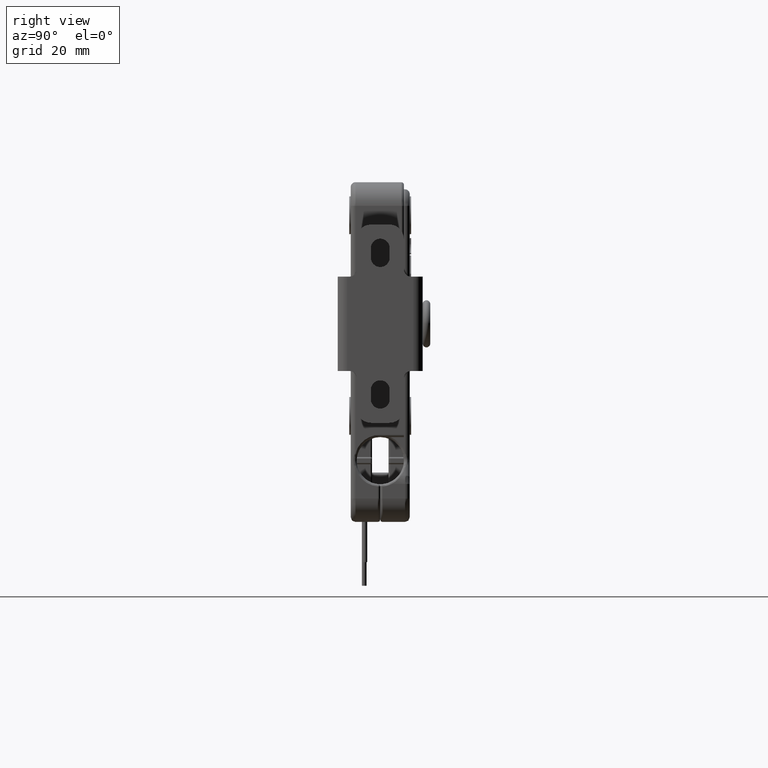
[diagram: clean part render]
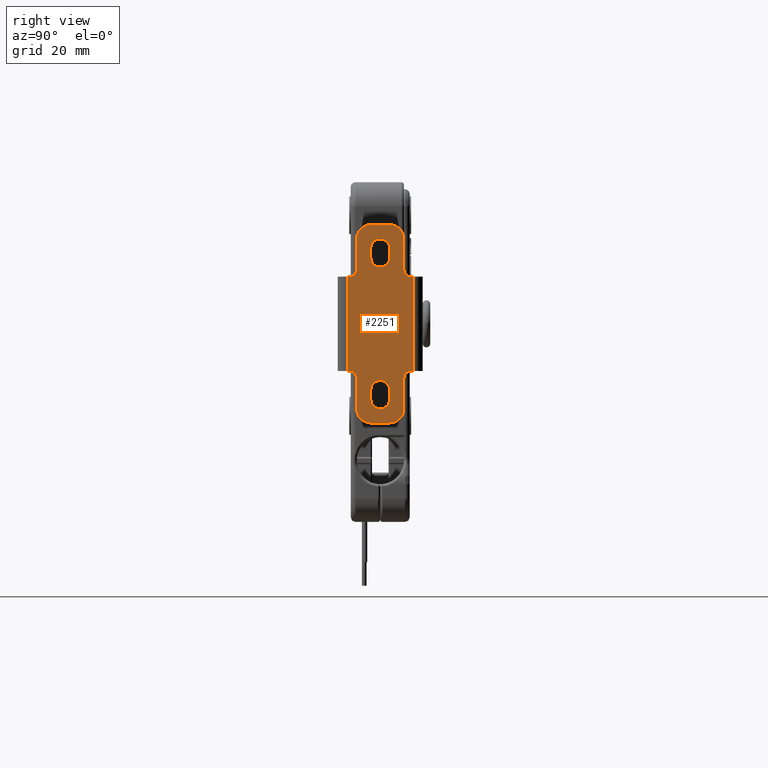
[diagram: same view with one face highlighted and labeled with its STEP entity id]
A machine part, right view. The second image highlights one B-rep face of the part: STEP entity #2251.
In plain terms, the highlighted planar face has unit normal (1, 0, 0).
Its self-contained STEP definition (entity closure, byte-faithful):
#2251=ADVANCED_FACE('',(#23766,#23767,#23768),#23765,.T.);
#23765=PLANE('',#41982);
#23766=FACE_OUTER_BOUND('',#41983,.T.);
#23767=FACE_BOUND('',#41984,.T.);
#23768=FACE_BOUND('',#41985,.T.);
#41979=CARTESIAN_POINT('',(0.00000000000E+00,-8.40000000000E+00,2.52000000002E+01));
#41980=DIRECTION('',(1.00000000000E+00,0.00000000000E+00,0.00000000000E+00));
#41981=DIRECTION('',(0.00000000000E+00,0.00000000000E+00,-1.00000000000E+00));
#41982=AXIS2_PLACEMENT_3D('',#41979,#41980,#41981);
#41983=EDGE_LOOP('',(#53648,#53649,#53650,#53651,#53652,#53653,#53654,#53655,#53656,#53657,#53658,#53659,#53660,#53661,#53662,#53663,#53664,#53665,#53666,#53667));
#41984=EDGE_LOOP('',(#53668,#53669,#53670,#53671));
#41985=EDGE_LOOP('',(#53672,#53673,#53674,#53675));
#53648=ORIENTED_EDGE('',*,*,#59489,.T.);
#53649=ORIENTED_EDGE('',*,*,#59542,.T.);
#53650=ORIENTED_EDGE('',*,*,#59480,.T.);
#53651=ORIENTED_EDGE('',*,*,#59478,.T.);
#53652=ORIENTED_EDGE('',*,*,#59541,.T.);
#53653=ORIENTED_EDGE('',*,*,#59538,.F.);
#53654=ORIENTED_EDGE('',*,*,#59535,.T.);
#53655=ORIENTED_EDGE('',*,*,#59532,.F.);
#53656=ORIENTED_EDGE('',*,*,#59529,.T.);
#53657=ORIENTED_EDGE('',*,*,#59526,.T.);
#53658=ORIENTED_EDGE('',*,*,#59521,.T.);
#53659=ORIENTED_EDGE('',*,*,#59543,.T.);
#53660=ORIENTED_EDGE('',*,*,#59516,.T.);
#53661=ORIENTED_EDGE('',*,*,#59514,.T.);
#53662=ORIENTED_EDGE('',*,*,#59511,.T.);
#53663=ORIENTED_EDGE('',*,*,#59508,.F.);
#53664=ORIENTED_EDGE('',*,*,#59505,.T.);
#53665=ORIENTED_EDGE('',*,*,#59502,.F.);
#53666=ORIENTED_EDGE('',*,*,#59499,.T.);
#53667=ORIENTED_EDGE('',*,*,#59496,.T.);
#53668=ORIENTED_EDGE('',*,*,#59469,.T.);
#53669=ORIENTED_EDGE('',*,*,#59466,.T.);
#53670=ORIENTED_EDGE('',*,*,#59475,.T.);
#53671=ORIENTED_EDGE('',*,*,#59472,.T.);
#53672=ORIENTED_EDGE('',*,*,#59457,.T.);
#53673=ORIENTED_EDGE('',*,*,#59454,.T.);
#53674=ORIENTED_EDGE('',*,*,#59463,.T.);
#53675=ORIENTED_EDGE('',*,*,#59460,.T.);
#59454=EDGE_CURVE('',#97008,#97001,#97009,.T.);
#59457=EDGE_CURVE('',#97028,#97008,#97029,.T.);
#59460=EDGE_CURVE('',#97048,#97028,#97049,.T.);
#59463=EDGE_CURVE('',#97001,#97048,#97067,.T.);
#59466=EDGE_CURVE('',#97088,#97081,#97089,.T.);
#59469=EDGE_CURVE('',#97108,#97088,#97109,.T.);
#59472=EDGE_CURVE('',#97128,#97108,#97129,.T.);
#59475=EDGE_CURVE('',#97081,#97128,#97147,.T.);
#59478=EDGE_CURVE('',#97168,#97161,#97169,.T.);
#59480=EDGE_CURVE('',#97181,#97168,#97182,.T.);
#59489=EDGE_CURVE('',#97244,#97237,#97245,.T.);
#59496=EDGE_CURVE('',#97292,#97244,#97293,.T.);
#59499=EDGE_CURVE('',#97312,#97292,#97313,.T.);
#59502=EDGE_CURVE('',#97312,#97332,#97333,.T.);
#59505=EDGE_CURVE('',#97352,#97332,#97353,.T.);
#59508=EDGE_CURVE('',#97352,#97372,#97373,.T.);
#59511=EDGE_CURVE('',#97392,#97372,#97393,.T.);
#59514=EDGE_CURVE('',#97412,#97392,#97413,.T.);
#59516=EDGE_CURVE('',#97425,#97412,#97426,.T.);
#59521=EDGE_CURVE('',#97458,#97451,#97459,.T.);
#59526=EDGE_CURVE('',#97492,#97458,#97493,.T.);
#59529=EDGE_CURVE('',#97512,#97492,#97513,.T.);
#59532=EDGE_CURVE('',#97512,#97532,#97533,.T.);
#59535=EDGE_CURVE('',#97552,#97532,#97553,.T.);
#59538=EDGE_CURVE('',#97552,#97572,#97573,.T.);
#59541=EDGE_CURVE('',#97161,#97572,#97591,.T.);
#59542=EDGE_CURVE('',#97237,#97181,#97597,.T.);
#59543=EDGE_CURVE('',#97451,#97425,#97603,.T.);
#97001=VERTEX_POINT('',#121686);
#97008=VERTEX_POINT('',#121690);
#97009=CIRCLE('',#121694,2.00000000000E+00);
#97028=VERTEX_POINT('',#121702);
#97029=LINE('',#121703,#121704);
#97048=VERTEX_POINT('',#121714);
#97049=CIRCLE('',#121718,2.00000000000E+00);
#97067=LINE('',#121725,#121726);
#97081=VERTEX_POINT('',#121733);
#97088=VERTEX_POINT('',#121737);
#97089=LINE('',#121738,#121739);
#97108=VERTEX_POINT('',#121749);
#97109=CIRCLE('',#121753,2.00000000000E+00);
#97128=VERTEX_POINT('',#121761);
#97129=LINE('',#121762,#121763);
#97147=CIRCLE('',#121775,2.00000000000E+00);
#97161=VERTEX_POINT('',#121782);
#97168=VERTEX_POINT('',#121786);
#97169=CIRCLE('',#121790,1.50000000000E+00);
#97181=VERTEX_POINT('',#121794);
#97182=LINE('',#121795,#121796);
#97237=VERTEX_POINT('',#121828);
#97244=VERTEX_POINT('',#121833);
#97245=LINE('',#121834,#121835);
#97292=VERTEX_POINT('',#121862);
#97293=CIRCLE('',#121866,1.50000000000E+00);
#97312=VERTEX_POINT('',#121874);
#97313=LINE('',#121875,#121876);
#97332=VERTEX_POINT('',#121886);
#97333=CIRCLE('',#121890,3.00000000000E+00);
#97352=VERTEX_POINT('',#121898);
#97353=LINE('',#121899,#121900);
#97372=VERTEX_POINT('',#121910);
#97373=CIRCLE('',#121914,3.00000000000E+00);
#97392=VERTEX_POINT('',#121922);
#97393=LINE('',#121923,#121924);
#97412=VERTEX_POINT('',#121934);
#97413=CIRCLE('',#121938,1.50000000000E+00);
#97425=VERTEX_POINT('',#121942);
#97426=LINE('',#121943,#121944);
#97451=VERTEX_POINT('',#121958);
#97458=VERTEX_POINT('',#121963);
#97459=LINE('',#121964,#121965);
#97492=VERTEX_POINT('',#121984);
#97493=CIRCLE('',#121988,1.50000000000E+00);
#97512=VERTEX_POINT('',#121996);
#97513=LINE('',#121997,#121998);
#97532=VERTEX_POINT('',#122008);
#97533=CIRCLE('',#122012,3.00000000000E+00);
#97552=VERTEX_POINT('',#122020);
#97553=LINE('',#122021,#122022);
#97572=VERTEX_POINT('',#122032);
#97573=CIRCLE('',#122036,3.00000000000E+00);
#97591=LINE('',#122043,#122044);
#97597=LINE('',#122046,#122047);
#97603=LINE('',#122049,#122050);
#121686=CARTESIAN_POINT('',(0.00000000000E+00,2.00000000000E+00,1.60000000001E+01));
#121690=CARTESIAN_POINT('',(0.00000000000E+00,-2.00000000000E+00,1.60000000001E+01));
#121691=CARTESIAN_POINT('',(0.00000000000E+00,9.94759830064E-14,1.60000000001E+01));
#121692=DIRECTION('',(-1.00000000000E+00,0.00000000000E+00,-0.00000000000E+00));
#121693=DIRECTION('',(0.00000000000E+00,1.00000000000E+00,-1.83690953073E-16));
#121694=AXIS2_PLACEMENT_3D('',#121691,#121692,#121693);
#121702=CARTESIAN_POINT('',(0.00000000000E+00,-2.00000000000E+00,1.40000000001E+01));
#121703=CARTESIAN_POINT('',(0.00000000000E+00,-2.00000000000E+00,1.40000000001E+01));
#121704=VECTOR('',#121705,2.00000000000E+00);
#121705=DIRECTION('',(0.00000000000E+00,0.00000000000E+00,1.00000000000E+00));
#121714=CARTESIAN_POINT('',(0.00000000000E+00,2.00000000000E+00,1.40000000001E+01));
#121715=CARTESIAN_POINT('',(0.00000000000E+00,9.94759830064E-14,1.40000000001E+01));
#121716=DIRECTION('',(-1.00000000000E+00,-0.00000000000E+00,-0.00000000000E+00));
#121717=DIRECTION('',(-0.00000000000E+00,-0.00000000000E+00,1.00000000000E+00));
#121718=AXIS2_PLACEMENT_3D('',#121715,#121716,#121717);
#121725=CARTESIAN_POINT('',(0.00000000000E+00,2.00000000000E+00,1.60000000001E+01));
#121726=VECTOR('',#121727,2.00000000000E+00);
#121727=DIRECTION('',(0.00000000000E+00,0.00000000000E+00,-1.00000000000E+00));
#121733=CARTESIAN_POINT('',(0.00000000000E+00,-2.00000000000E+00,-1.40000000001E+01));
#121737=CARTESIAN_POINT('',(0.00000000000E+00,-2.00000000000E+00,-1.60000000001E+01));
#121738=CARTESIAN_POINT('',(0.00000000000E+00,-2.00000000000E+00,-1.60000000001E+01));
#121739=VECTOR('',#121740,2.00000000000E+00);
#121740=DIRECTION('',(0.00000000000E+00,0.00000000000E+00,1.00000000000E+00));
#121749=CARTESIAN_POINT('',(0.00000000000E+00,2.00000000000E+00,-1.60000000001E+01));
#121750=CARTESIAN_POINT('',(0.00000000000E+00,9.94759830064E-14,-1.60000000001E+01));
#121751=DIRECTION('',(-1.00000000000E+00,-0.00000000000E+00,-0.00000000000E+00));
#121752=DIRECTION('',(-0.00000000000E+00,-0.00000000000E+00,1.00000000000E+00));
#121753=AXIS2_PLACEMENT_3D('',#121750,#121751,#121752);
#121761=CARTESIAN_POINT('',(0.00000000000E+00,2.00000000000E+00,-1.40000000001E+01));
#121762=CARTESIAN_POINT('',(0.00000000000E+00,2.00000000000E+00,-1.40000000001E+01));
#121763=VECTOR('',#121764,2.00000000000E+00);
#121764=DIRECTION('',(0.00000000000E+00,0.00000000000E+00,-1.00000000000E+00));
#121772=CARTESIAN_POINT('',(0.00000000000E+00,9.94759830064E-14,-1.40000000001E+01));
#121773=DIRECTION('',(-1.00000000000E+00,0.00000000000E+00,-0.00000000000E+00));
#121774=DIRECTION('',(0.00000000000E+00,1.00000000000E+00,-1.83690953073E-16));
#121775=AXIS2_PLACEMENT_3D('',#121772,#121773,#121774);
#121782=CARTESIAN_POINT('',(0.00000000000E+00,5.00000000000E+00,1.15000000000E+01));
#121786=CARTESIAN_POINT('',(0.00000000000E+00,6.50000000000E+00,9.99999999999E+00));
#121787=CARTESIAN_POINT('',(0.00000000000E+00,6.50000000000E+00,1.15000000000E+01));
#121788=DIRECTION('',(-1.00000000000E+00,-0.00000000000E+00,-0.00000000000E+00));
#121789=DIRECTION('',(-0.00000000000E+00,-0.00000000000E+00,1.00000000000E+00));
#121790=AXIS2_PLACEMENT_3D('',#121787,#121788,#121789);
#121794=CARTESIAN_POINT('',(0.00000000000E+00,7.00000000000E+00,9.99999999999E+00));
#121795=CARTESIAN_POINT('',(0.00000000000E+00,7.00000000000E+00,9.99999999999E+00));
#121796=VECTOR('',#121797,5.00000000001E-01);
#121797=DIRECTION('',(0.00000000000E+00,-1.00000000000E+00,9.55679979595E-13));
#121828=CARTESIAN_POINT('',(0.00000000000E+00,7.00000000000E+00,-1.00000000000E+01));
#121833=CARTESIAN_POINT('',(0.00000000000E+00,6.50000000000E+00,-1.00000000000E+01));
#121834=CARTESIAN_POINT('',(0.00000000000E+00,6.50000000000E+00,-1.00000000000E+01));
#121835=VECTOR('',#121836,4.99999999999E-01);
#121836=DIRECTION('',(0.00000000000E+00,1.00000000000E+00,-9.66338120636E-13));
#121862=CARTESIAN_POINT('',(0.00000000000E+00,5.00000000000E+00,-1.15000000000E+01));
#121863=CARTESIAN_POINT('',(0.00000000000E+00,6.50000000000E+00,-1.15000000000E+01));
#121864=DIRECTION('',(-1.00000000000E+00,-0.00000000000E+00,0.00000000000E+00));
#121865=DIRECTION('',(-0.00000000000E+00,9.59232693276E-13,1.00000000000E+00));
#121866=AXIS2_PLACEMENT_3D('',#121863,#121864,#121865);
#121874=CARTESIAN_POINT('',(0.00000000000E+00,5.00000000000E+00,-1.80000000001E+01));
#121875=CARTESIAN_POINT('',(0.00000000000E+00,5.00000000000E+00,-1.80000000001E+01));
#121876=VECTOR('',#121877,6.50000000013E+00);
#121877=DIRECTION('',(0.00000000000E+00,0.00000000000E+00,1.00000000000E+00));
#121886=CARTESIAN_POINT('',(0.00000000000E+00,2.00000000000E+00,-2.10000000001E+01));
#121887=CARTESIAN_POINT('',(0.00000000000E+00,2.00000000000E+00,-1.80000000001E+01));
#121888=DIRECTION('',(-1.00000000000E+00,-0.00000000000E+00,-0.00000000000E+00));
#121889=DIRECTION('',(-0.00000000000E+00,-0.00000000000E+00,1.00000000000E+00));
#121890=AXIS2_PLACEMENT_3D('',#121887,#121888,#121889);
#121898=CARTESIAN_POINT('',(0.00000000000E+00,-2.00000000000E+00,-2.10000000001E+01));
#121899=CARTESIAN_POINT('',(0.00000000000E+00,-2.00000000000E+00,-2.10000000001E+01));
#121900=VECTOR('',#121901,4.00000000000E+00);
#121901=DIRECTION('',(0.00000000000E+00,1.00000000000E+00,-7.24753590475E-13));
#121910=CARTESIAN_POINT('',(0.00000000000E+00,-5.00000000000E+00,-1.80000000001E+01));
#121911=CARTESIAN_POINT('',(0.00000000000E+00,-2.00000000000E+00,-1.80000000001E+01));
#121912=DIRECTION('',(-1.00000000000E+00,-0.00000000000E+00,-0.00000000000E+00));
#121913=DIRECTION('',(-0.00000000000E+00,-0.00000000000E+00,1.00000000000E+00));
#121914=AXIS2_PLACEMENT_3D('',#121911,#121912,#121913);
#121922=CARTESIAN_POINT('',(0.00000000000E+00,-5.00000000000E+00,-1.15000000000E+01));
#121923=CARTESIAN_POINT('',(0.00000000000E+00,-5.00000000000E+00,-1.15000000000E+01));
#121924=VECTOR('',#121925,6.50000000014E+00);
#121925=DIRECTION('',(0.00000000000E+00,0.00000000000E+00,-1.00000000000E+00));
#121934=CARTESIAN_POINT('',(0.00000000000E+00,-6.50000000000E+00,-9.99999999999E+00));
#121935=CARTESIAN_POINT('',(0.00000000000E+00,-6.50000000000E+00,-1.15000000000E+01));
#121936=DIRECTION('',(-1.00000000000E+00,-0.00000000000E+00,-0.00000000000E+00));
#121937=DIRECTION('',(-0.00000000000E+00,-0.00000000000E+00,1.00000000000E+00));
#121938=AXIS2_PLACEMENT_3D('',#121935,#121936,#121937);
#121942=CARTESIAN_POINT('',(0.00000000000E+00,-7.00000000000E+00,-9.99999999999E+00));
#121943=CARTESIAN_POINT('',(0.00000000000E+00,-7.00000000000E+00,-9.99999999999E+00));
#121944=VECTOR('',#121945,5.00000000002E-01);
#121945=DIRECTION('',(0.00000000000E+00,1.00000000000E+00,-9.98312543740E-13));
#121958=CARTESIAN_POINT('',(0.00000000000E+00,-7.00000000000E+00,1.00000000000E+01));
#121963=CARTESIAN_POINT('',(0.00000000000E+00,-6.50000000000E+00,1.00000000000E+01));
#121964=CARTESIAN_POINT('',(0.00000000000E+00,-6.50000000000E+00,1.00000000000E+01));
#121965=VECTOR('',#121966,4.99999999999E-01);
#121966=DIRECTION('',(0.00000000000E+00,-1.00000000000E+00,1.00186525742E-12));
#121984=CARTESIAN_POINT('',(0.00000000000E+00,-5.00000000000E+00,1.15000000000E+01));
#121985=CARTESIAN_POINT('',(0.00000000000E+00,-6.50000000000E+00,1.15000000000E+01));
#121986=DIRECTION('',(-1.00000000000E+00,-0.00000000000E+00,-0.00000000000E+00));
#121987=DIRECTION('',(-0.00000000000E+00,-0.00000000000E+00,1.00000000000E+00));
#121988=AXIS2_PLACEMENT_3D('',#121985,#121986,#121987);
#121996=CARTESIAN_POINT('',(0.00000000000E+00,-5.00000000000E+00,1.80000000001E+01));
#121997=CARTESIAN_POINT('',(0.00000000000E+00,-5.00000000000E+00,1.80000000001E+01));
#121998=VECTOR('',#121999,6.50000000013E+00);
#121999=DIRECTION('',(0.00000000000E+00,0.00000000000E+00,-1.00000000000E+00));
#122008=CARTESIAN_POINT('',(0.00000000000E+00,-2.00000000000E+00,2.10000000001E+01));
#122009=CARTESIAN_POINT('',(0.00000000000E+00,-2.00000000000E+00,1.80000000001E+01));
#122010=DIRECTION('',(-1.00000000000E+00,-0.00000000000E+00,-0.00000000000E+00));
#122011=DIRECTION('',(-0.00000000000E+00,-0.00000000000E+00,1.00000000000E+00));
#122012=AXIS2_PLACEMENT_3D('',#122009,#122010,#122011);
#122020=CARTESIAN_POINT('',(0.00000000000E+00,2.00000000000E+00,2.10000000001E+01));
#122021=CARTESIAN_POINT('',(0.00000000000E+00,2.00000000000E+00,2.10000000001E+01));
#122022=VECTOR('',#122023,4.00000000000E+00);
#122023=DIRECTION('',(0.00000000000E+00,-1.00000000000E+00,-7.24753590475E-13));
#122032=CARTESIAN_POINT('',(0.00000000000E+00,5.00000000000E+00,1.80000000001E+01));
#122033=CARTESIAN_POINT('',(0.00000000000E+00,2.00000000000E+00,1.80000000001E+01));
#122034=DIRECTION('',(-1.00000000000E+00,0.00000000000E+00,-0.00000000000E+00));
#122035=DIRECTION('',(0.00000000000E+00,1.00000000000E+00,-1.83690953073E-16));
#122036=AXIS2_PLACEMENT_3D('',#122033,#122034,#122035);
#122043=CARTESIAN_POINT('',(0.00000000000E+00,5.00000000000E+00,1.15000000000E+01));
#122044=VECTOR('',#122045,6.50000000015E+00);
#122045=DIRECTION('',(0.00000000000E+00,0.00000000000E+00,1.00000000000E+00));
#122046=CARTESIAN_POINT('',(0.00000000000E+00,7.00000000000E+00,-1.00000000000E+01));
#122047=VECTOR('',#122048,2.00000000000E+01);
#122048=DIRECTION('',(0.00000000000E+00,0.00000000000E+00,1.00000000000E+00));
#122049=CARTESIAN_POINT('',(0.00000000000E+00,-7.00000000000E+00,1.00000000000E+01));
#122050=VECTOR('',#122051,2.00000000000E+01);
#122051=DIRECTION('',(0.00000000000E+00,0.00000000000E+00,-1.00000000000E+00));